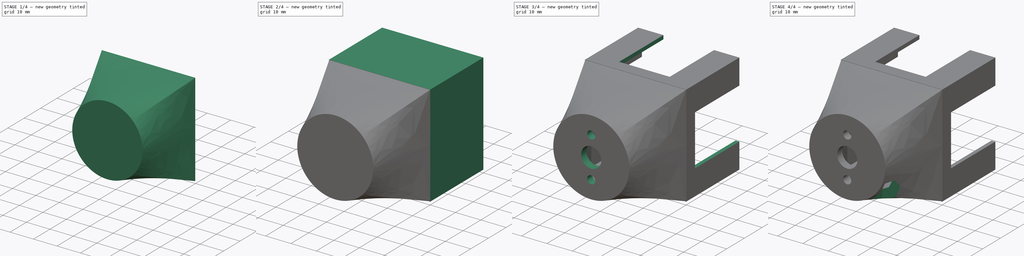
[diagram: build sequence overview — one tinted view per stage of 4, left to right]
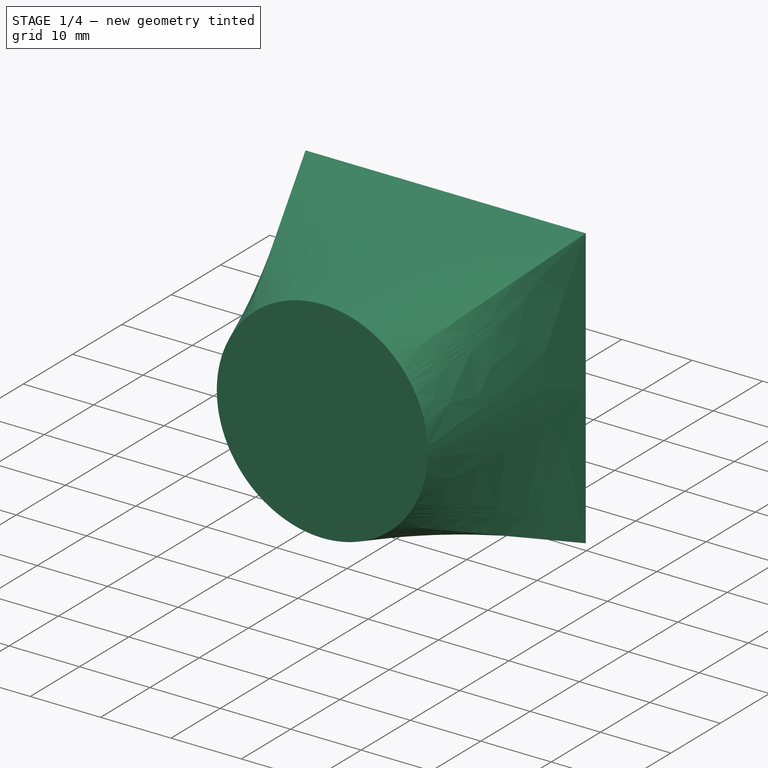
[diagram: stage 1 of 4 — iso view after this stage's code; geometry added in this stage tinted green]
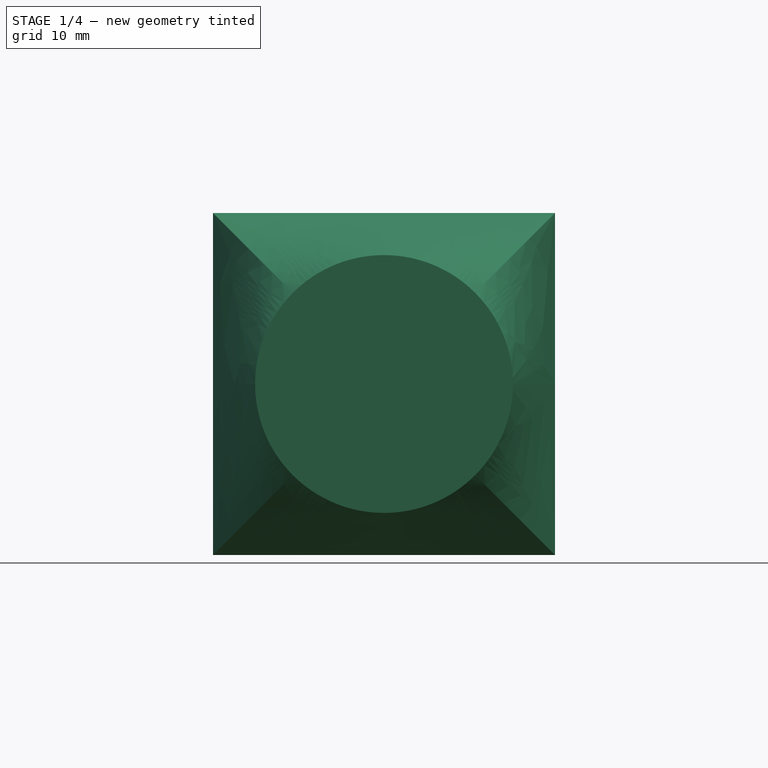
[diagram: stage 1 of 4 — front view after this stage's code; geometry added in this stage tinted green]
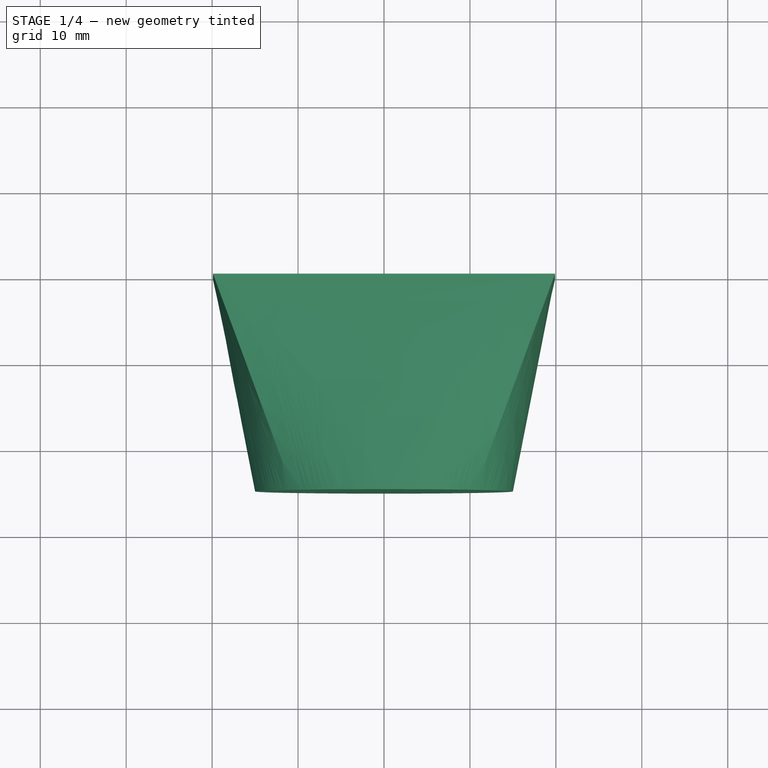
[diagram: stage 1 of 4 — top view after this stage's code; geometry added in this stage tinted green]
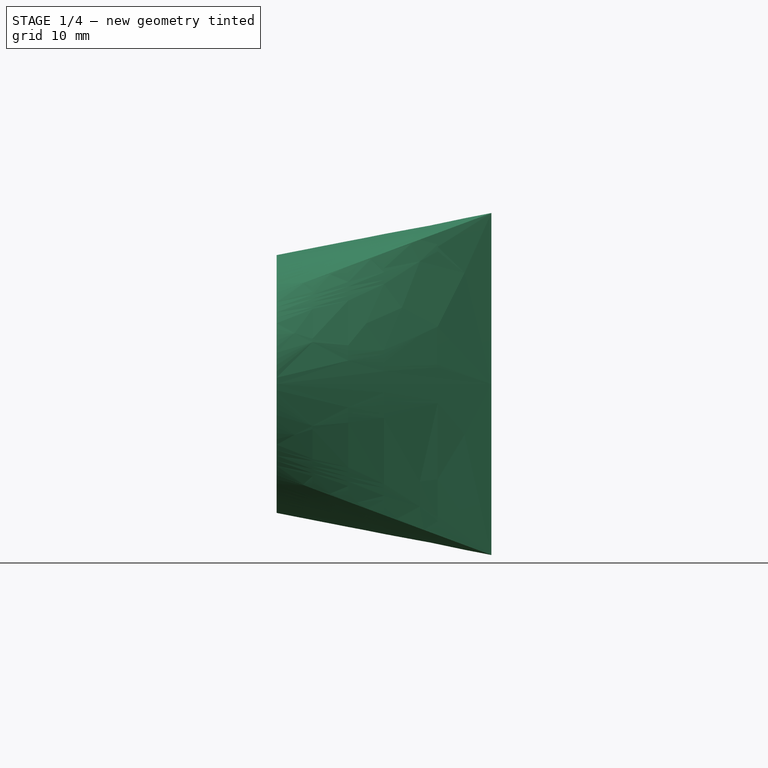
[diagram: stage 1 of 4 — right view after this stage's code; geometry added in this stage tinted green]
FCSTD DOCUMENT  (FreeCAD 1.0R39319 (Git))
Label: Cockpit
License: All rights reserved
LicenseURL: https://en.wikipedia.org/wiki/All_rights_reserved
objects: Sketcher::SketchObject×10, PartDesign::Pocket×5, PartDesign::AdditiveLoft×1, PartDesign::SubtractiveLoft×1, PartDesign::Pad×1, PartDesign::Chamfer×1, PartDesign::Body×1
note: 48 computed .brp shape members not serialized (recipe doc carries the construction recipe); baked Part::Feature solids carry a one-line shape summary decoded from their .brp

FEATURE [Sketcher::SketchObject] Sketch
  ArcFitTolerance = 1e-06
  AttachmentSupport = -> [XZ_Plane]
  FullyConstrained = true
  MakeInternals = false
  MapMode = 5
  Placement = pos=(0,0,0) rot=(1,0,0;1.5708rad)
  sketch-geometry (5):
    g0: LineSegment StartX=-19.9 StartY=-19.9 StartZ=0 EndX=19.9 EndY=-19.9 EndZ=0
    g1: LineSegment StartX=19.9 StartY=-19.9 StartZ=0 EndX=19.9 EndY=19.9 EndZ=0
    g2: LineSegment StartX=19.9 StartY=19.9 StartZ=0 EndX=-19.9 EndY=19.9 EndZ=0
    g3: LineSegment StartX=-19.9 StartY=19.9 StartZ=0 EndX=-19.9 EndY=-19.9 EndZ=0
    g4: GeomPoint [constr] X=0 Y=0 Z=0
  constraints (12):
    c: Coincident(g0,g1)
    c: Coincident(g1,g2)
    c: Coincident(g2,g3)
    c: Coincident(g3,g0)
    c: Horizontal(g0)
    c: Horizontal(g2)
    c: Vertical(g1)
    c: Vertical(g3)
    c: Symmetric(g2,g0,g4)
    c: Distance(g1,g3) = 39.8
    c: Distance(g0,g2) = 39.8
    c: Coincident(g4,g-1)
FEATURE [Sketcher::SketchObject] Sketch001
  ArcFitTolerance = 1e-06
  AttachmentOffset = pos=(0,0,25) rot=(0,0,1;0rad)
  AttachmentSupport = -> [XZ_Plane]
  FullyConstrained = true
  MakeInternals = false
  MapMode = 5
  Placement = pos=(0,-25,5.6e-15) rot=(1,0,0;1.5708rad)
  sketch-geometry (1):
    g0: Circle CenterX=0 CenterY=0 CenterZ=0 NormalX=0 NormalY=0 NormalZ=1 AngleXU=0 Radius=15
  constraints (2):
    c: Diameter(g0) = 30
    c: Coincident(g0,g-1)
FEATURE [PartDesign::AdditiveLoft] AdditiveLoft
  Closed = false
  Placement = pos=(0,0,0) rot=(1,0,0;1.5708rad)
  Profile = -> Sketch001
  Refine = true
  Ruled = false
  Sections = -> [Sketch]
  Suppressed = false
FEATURE [Sketcher::SketchObject] Sketch002
  ArcFitTolerance = 1e-06
  AttachmentSupport = -> [AdditiveLoft]
  FullyConstrained = true
  MakeInternals = false
  MapMode = 5
  Placement = pos=(0,0,0) rot=(-1,0,0;1.5708rad)
  sketch-geometry (5):
    g0: LineSegment StartX=-17.5 StartY=-17.5 StartZ=0 EndX=17.5 EndY=-17.5 EndZ=0
    g1: LineSegment StartX=17.5 StartY=-17.5 StartZ=0 EndX=17.5 EndY=17.5 EndZ=0
    g2: LineSegment StartX=17.5 StartY=17.5 StartZ=0 EndX=-17.5 EndY=17.5 EndZ=0
    g3: LineSegment StartX=-17.5 StartY=17.5 StartZ=0 EndX=-17.5 EndY=-17.5 EndZ=0
    g4: GeomPoint [constr] X=0 Y=0 Z=0
  constraints (12):
    c: Coincident(g0,g1)
    c: Coincident(g1,g2)
    c: Coincident(g2,g3)
    c: Coincident(g3,g0)
    c: Horizontal(g0)
    c: Horizontal(g2)
    c: Vertical(g1)
    c: Vertical(g3)
    c: Symmetric(g2,g0,g4)
    c: Distance(g1,g3) = 35
    c: Distance(g0,g2) = 35
    c: Coincident(g4,g-1)
FEATURE [Sketcher::SketchObject] Sketch003
  ArcFitTolerance = 1e-06
  AttachmentOffset = pos=(0,0,-3) rot=(0,0,1;0rad)
  AttachmentSupport = -> [AdditiveLoft]
  FullyConstrained = true
  MakeInternals = false
  MapMode = 5
  Placement = pos=(0,-22,6.1e-15) rot=(1,0,0;1.5708rad)
  sketch-geometry (1):
    g0: Circle CenterX=0 CenterY=0 CenterZ=0 NormalX=0 NormalY=0 NormalZ=1 AngleXU=0 Radius=12.5
  constraints (2):
    c: Diameter(g0) = 25
    c: Coincident(g0,g-1)
FEATURE [PartDesign::SubtractiveLoft] SubtractiveLoft
  BaseFeature = -> AdditiveLoft
  Closed = false
  Placement = pos=(0,0,0) rot=(1,0,0;1.5708rad)
  Profile = -> Sketch002
  Refine = true
  Ruled = false
  Sections = -> [Sketch003]
  Suppressed = false
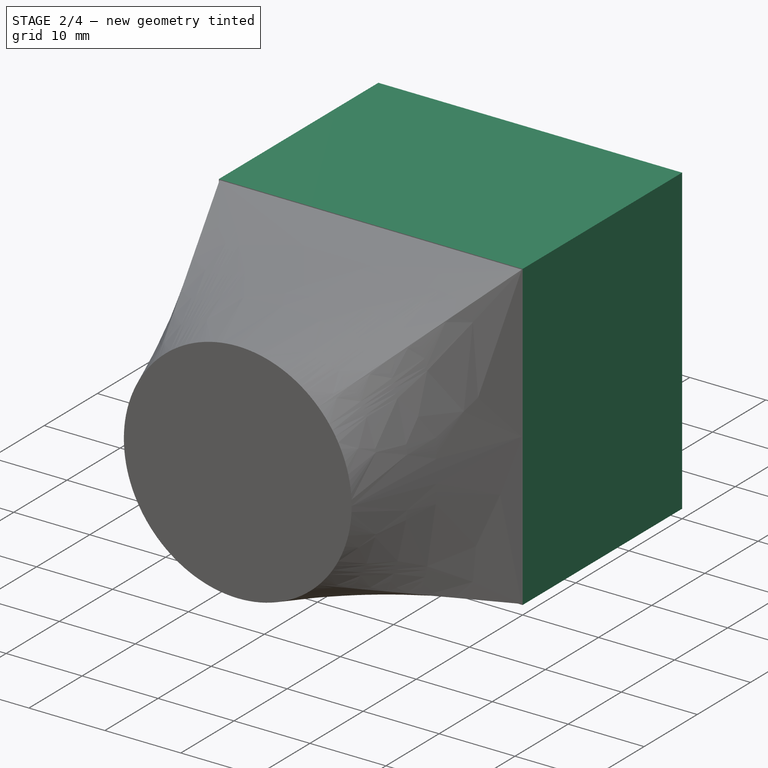
[diagram: stage 2 of 4 — iso view after this stage's code; geometry added in this stage tinted green]
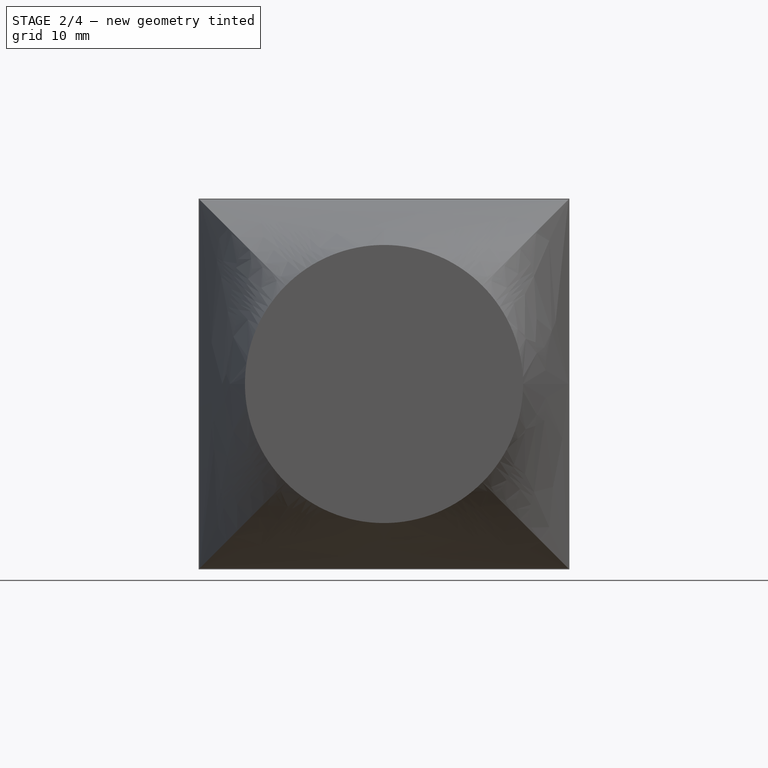
[diagram: stage 2 of 4 — front view after this stage's code; geometry added in this stage tinted green]
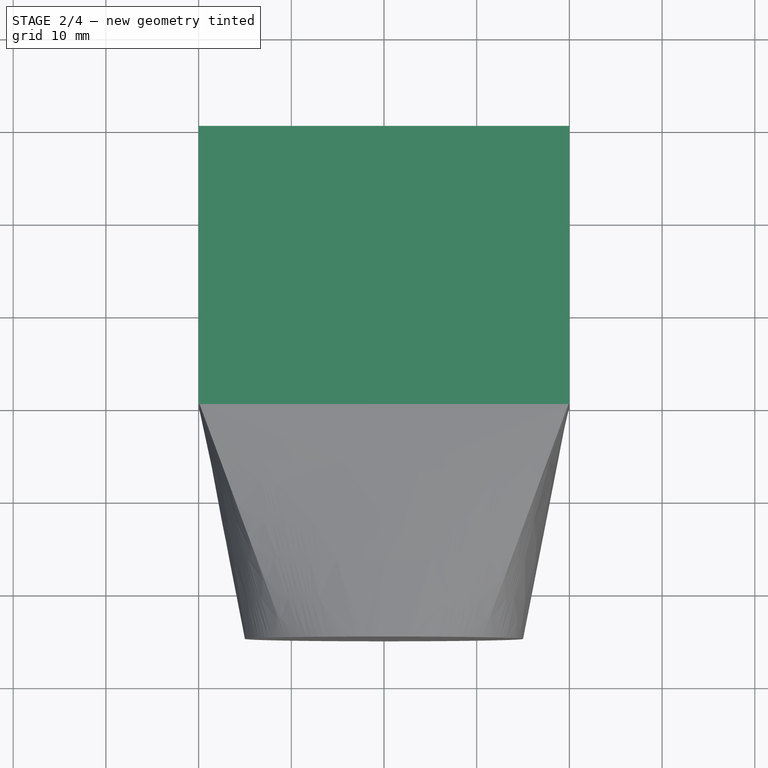
[diagram: stage 2 of 4 — top view after this stage's code; geometry added in this stage tinted green]
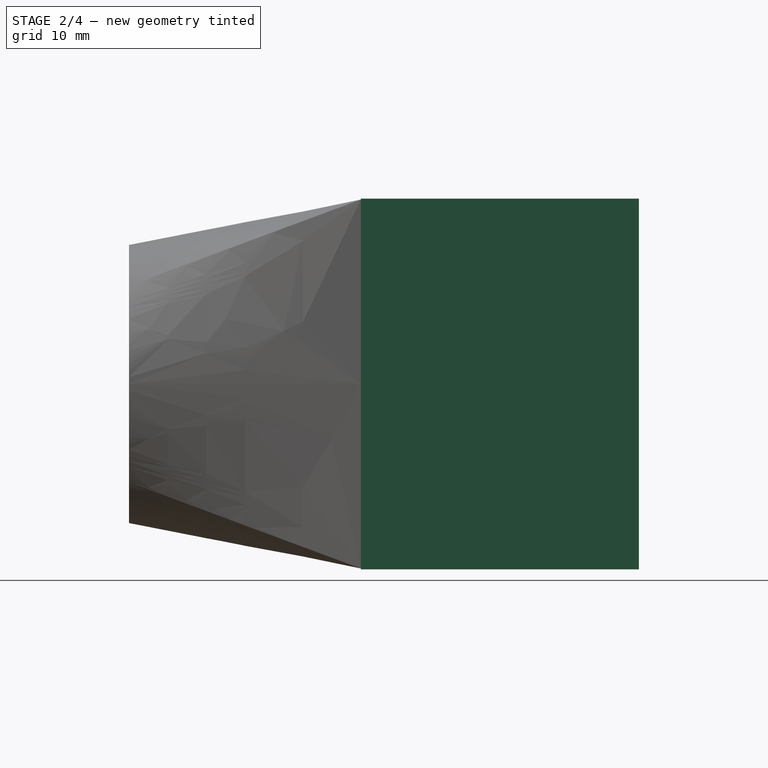
[diagram: stage 2 of 4 — right view after this stage's code; geometry added in this stage tinted green]
FEATURE [Sketcher::SketchObject] Sketch004
  ArcFitTolerance = 1e-06
  AttachmentOffset = pos=(0,0,-20) rot=(0,0,1;0rad)
  AttachmentSupport = -> [XY_Plane]
  FullyConstrained = true
  MakeInternals = false
  MapMode = 5
  Placement = pos=(0,0,-20) rot=(0,0,1;0rad)
  sketch-geometry (5):
    g0: LineSegment StartX=-20 StartY=0 StartZ=0 EndX=20 EndY=0 EndZ=0
    g1: LineSegment StartX=20 StartY=0 StartZ=0 EndX=20 EndY=30 EndZ=0
    g2: LineSegment StartX=20 StartY=30 StartZ=0 EndX=-20 EndY=30 EndZ=0
    g3: LineSegment StartX=-20 StartY=30 StartZ=0 EndX=-20 EndY=0 EndZ=0
    g4: GeomPoint X=0 Y=0 Z=0
  constraints (12):
    c: Coincident(g0,g1)
    c: Coincident(g1,g2)
    c: Coincident(g2,g3)
    c: Coincident(g3,g0)
    c: Horizontal(g0)
    c: Horizontal(g2)
    c: Vertical(g1)
    c: Vertical(g3)
    c: Distance(g1,g3) = 40
    c: Distance(g0,g2) = 30
    c: Symmetric(g0,g0,g4)
    c: Coincident(g4,g-1)
FEATURE [PartDesign::Pad] Pad
  BaseFeature = -> SubtractiveLoft
  Direction = (0,0,1)
  Length = 40
  Length2 = 10
  Placement = pos=(0,0,0) rot=(1,0,0;1.5708rad)
  Profile = -> Sketch004
  ReferenceAxis = -> Sketch004 [N_Axis]
  Refine = true
  Suppressed = false
  Type = 0
FEATURE [Sketcher::SketchObject] Sketch005
  ArcFitTolerance = 1e-06
  AttachmentSupport = -> [Pad]
  FullyConstrained = true
  MakeInternals = false
  MapMode = 5
  Placement = pos=(0,30,-6.6e-15) rot=(-1,0,0;1.5708rad)
  sketch-geometry (5):
    g0: LineSegment StartX=-18.5 StartY=-18.5 StartZ=0 EndX=18.5 EndY=-18.5 EndZ=0
    g1: LineSegment StartX=18.5 StartY=-18.5 StartZ=0 EndX=18.5 EndY=18.5 EndZ=0
    g2: LineSegment StartX=18.5 StartY=18.5 StartZ=0 EndX=-18.5 EndY=18.5 EndZ=0
    g3: LineSegment StartX=-18.5 StartY=18.5 StartZ=0 EndX=-18.5 EndY=-18.5 EndZ=0
    g4: GeomPoint [constr] X=0 Y=0 Z=0
  constraints (12):
    c: Coincident(g0,g1)
    c: Coincident(g1,g2)
    c: Coincident(g2,g3)
    c: Coincident(g3,g0)
    c: Horizontal(g0)
    c: Horizontal(g2)
    c: Vertical(g1)
    c: Vertical(g3)
    c: Symmetric(g2,g0,g4)
    c: Distance(g1,g3) = 37
    c: Distance(g0,g2) = 37
    c: Coincident(g4,g-1)
FEATURE [PartDesign::Pocket] Pocket  label="Sqaure"
  BaseFeature = -> Pad
  Direction = (0,-1,-2e-16)
  Length = 0
  Length2 = 5
  Placement = pos=(0,0,0) rot=(1,0,0;1.5708rad)
  Profile = -> Sketch005
  ReferenceAxis = -> Sketch005 [N_Axis]
  Refine = true
  Suppressed = false
  Type = 3
  UpToFace = -> XZ_Plane
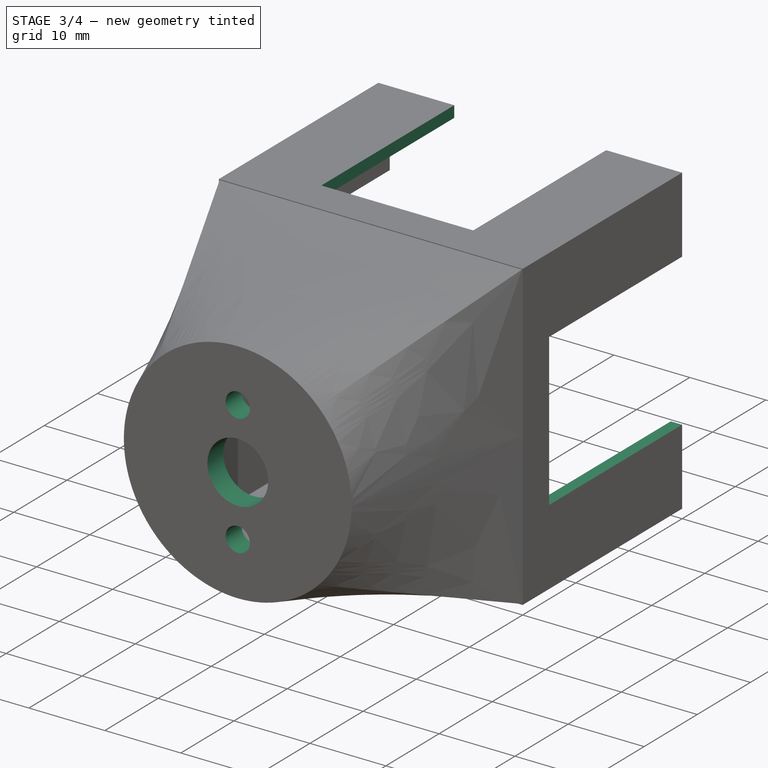
[diagram: stage 3 of 4 — iso view after this stage's code; geometry added in this stage tinted green]
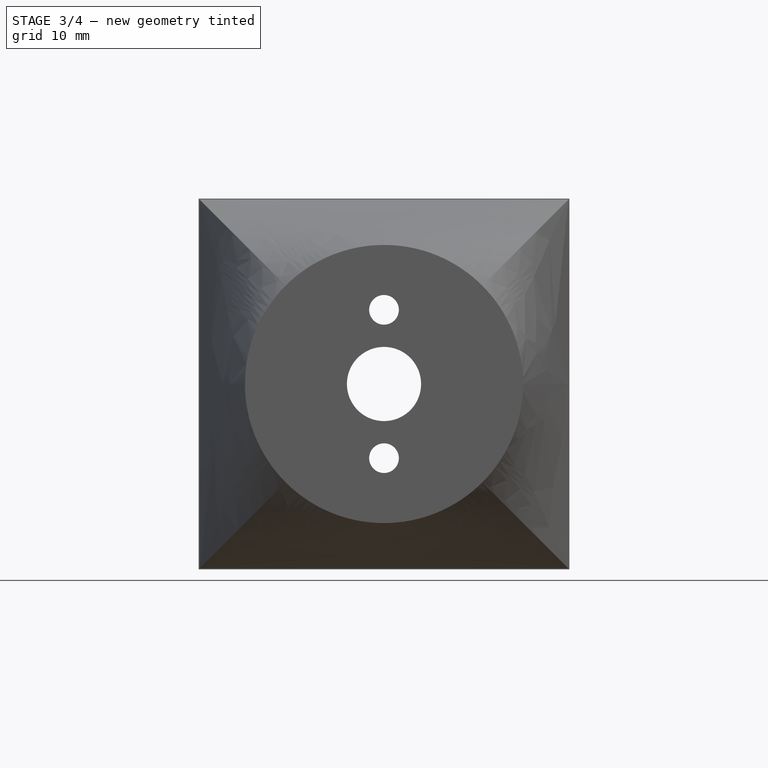
[diagram: stage 3 of 4 — front view after this stage's code; geometry added in this stage tinted green]
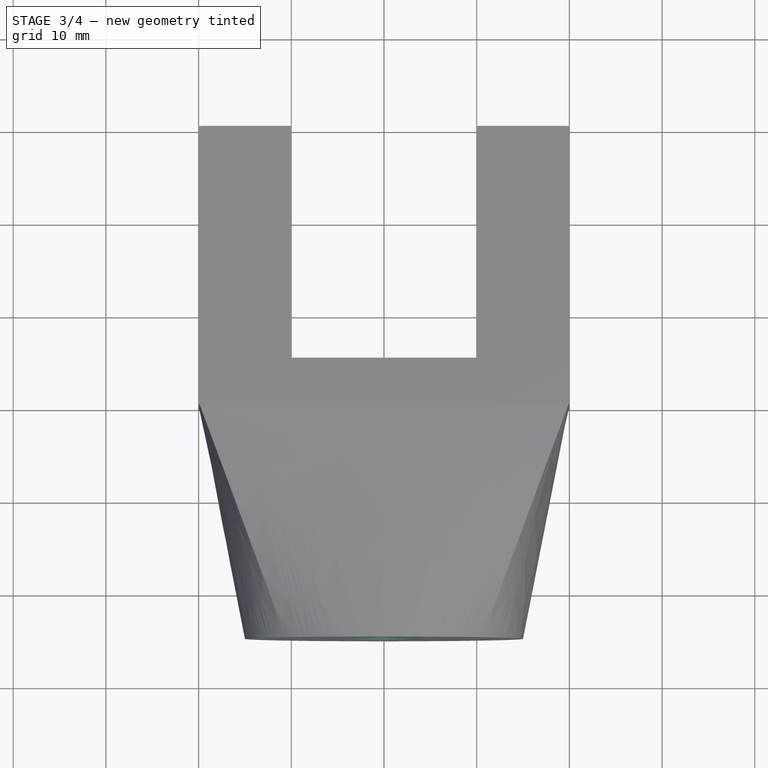
[diagram: stage 3 of 4 — top view after this stage's code; geometry added in this stage tinted green]
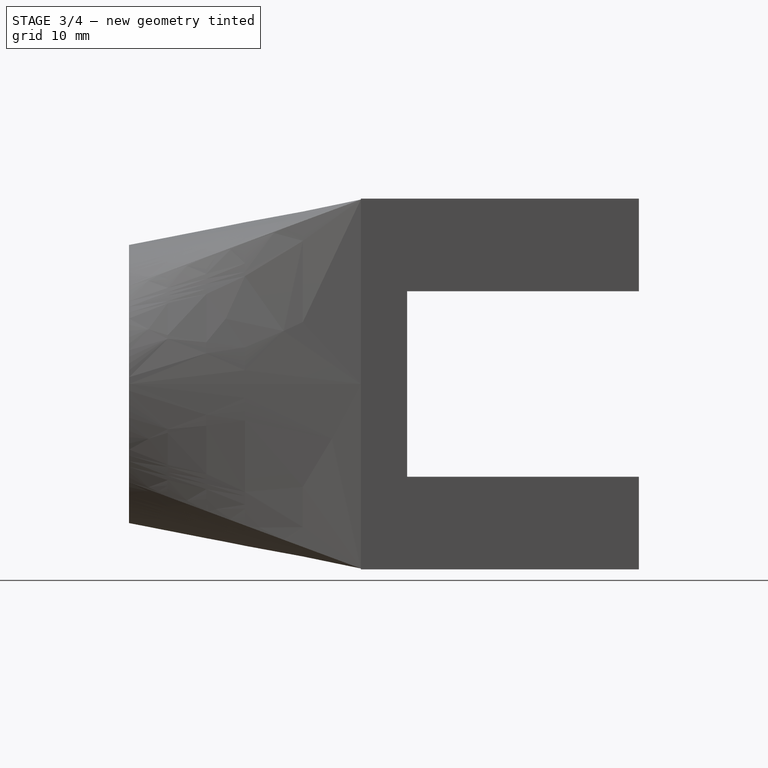
[diagram: stage 3 of 4 — right view after this stage's code; geometry added in this stage tinted green]
FEATURE [Sketcher::SketchObject] Sketch006
  ArcFitTolerance = 1e-06
  AttachmentSupport = -> [Pocket]
  ExternalGeometry = -> [Pocket]
  FullyConstrained = true
  MakeInternals = false
  MapMode = 5
  Placement = pos=(0,0,20) rot=(0,0,1;3.14159rad)
  sketch-geometry (4):
    g0: LineSegment StartX=-10 StartY=-5 StartZ=0 EndX=-10 EndY=-30 EndZ=0
    g1: LineSegment StartX=-10 StartY=-30 StartZ=0 EndX=10 EndY=-30 EndZ=0
    g2: LineSegment StartX=10 StartY=-30 StartZ=0 EndX=10 EndY=-5 EndZ=0
    g3: LineSegment StartX=10 StartY=-5 StartZ=0 EndX=-10 EndY=-5 EndZ=0
  constraints (12):
    c: Coincident(g0,g1)
    c: Coincident(g1,g2)
    c: Coincident(g2,g3)
    c: Coincident(g3,g0)
    c: Vertical(g0)
    c: Vertical(g2)
    c: Horizontal(g1)
    c: Horizontal(g3)
    c: Distance(g-1,g3) = 5
    c: Distance(g-3,g2) = 10
    c: Distance(g-5,g0) = 10
    c: PointOnObject(g1,g-4)
FEATURE [PartDesign::Pocket] Pocket001  label="Top Square"
  BaseFeature = -> Pocket
  Direction = (0,0,-1)
  Length = 0
  Length2 = 5
  Placement = pos=(0,0,0) rot=(1,0,0;1.5708rad)
  Profile = -> Sketch006
  ReferenceAxis = -> Sketch006 [N_Axis]
  Refine = true
  Suppressed = false
  Type = 3
  UpToFace = -> Pocket [Face9]
FEATURE [Sketcher::SketchObject] Sketch007
  ArcFitTolerance = 1e-06
  AttachmentSupport = -> [Pocket001]
  ExternalGeometry = -> [Pocket001]
  FullyConstrained = true
  MakeInternals = false
  MapMode = 5
  Placement = pos=(-20,0,0) rot=(0.707107,0,-0.707107;3.14159rad)
  sketch-geometry (4):
    g0: LineSegment StartX=-10 StartY=-5 StartZ=0 EndX=-10 EndY=-30 EndZ=0
    g1: LineSegment StartX=-10 StartY=-30 StartZ=0 EndX=10 EndY=-30 EndZ=0
    g2: LineSegment StartX=10 StartY=-30 StartZ=0 EndX=10 EndY=-5 EndZ=0
    g3: LineSegment StartX=10 StartY=-5 StartZ=0 EndX=-10 EndY=-5 EndZ=0
  constraints (12):
    c: Coincident(g0,g1)
    c: Coincident(g1,g2)
    c: Coincident(g2,g3)
    c: Coincident(g3,g0)
    c: Vertical(g0)
    c: Vertical(g2)
    c: Horizontal(g1)
    c: Horizontal(g3)
    c: Distance(g-3,g2) = 10
    c: Distance(g-1,g3) = 5
    c: Distance(g-5,g0) = 10
    c: PointOnObject(g1,g-4)
FEATURE [PartDesign::Pocket] Pocket002  label="Side Square"
  BaseFeature = -> Pocket001
  Direction = (1,0,2e-16)
  Length = 0
  Length2 = 5
  Placement = pos=(0,0,0) rot=(1,0,0;1.5708rad)
  Profile = -> Sketch007
  ReferenceAxis = -> Sketch007 [N_Axis]
  Refine = true
  Suppressed = false
  Type = 3
  UpToFace = -> Pocket001 [Face11]
FEATURE [Sketcher::SketchObject] Sketch008
  ArcFitTolerance = 1e-06
  AttachmentSupport = -> [Pocket002]
  ExternalGeometry = -> [Pocket002]
  FullyConstrained = true
  MakeInternals = false
  MapMode = 5
  Placement = pos=(0,-25,6.7e-15) rot=(1,0,0;1.5708rad)
  sketch-geometry (4):
    g0: Circle CenterX=-8e-16 CenterY=-8 CenterZ=0 NormalX=0 NormalY=0 NormalZ=1 AngleXU=0 Radius=1.6
    g1: Circle CenterX=0 CenterY=8 CenterZ=0 NormalX=0 NormalY=0 NormalZ=1 AngleXU=0 Radius=1.6
    g2: LineSegment [constr] StartX=0 StartY=8 StartZ=0 EndX=-8e-16 EndY=-8 EndZ=0
    g3: Circle CenterX=0 CenterY=0 CenterZ=0 NormalX=0 NormalY=0 NormalZ=1 AngleXU=0 Radius=4
  constraints (9):
    c: Diameter(g0) = 3.2
    c: Diameter(g1) = 3.2
    c: Coincident(g2,g1)
    c: Coincident(g2,g0)
    c: Diameter(g3) = 8
    c: Coincident(g3,g-1)
    c: Symmetric(g2,g2,g3)
    c: DistanceY(g2,g2) = 16
    c: PointOnObject(g1,g-2)
FEATURE [PartDesign::Pocket] Pocket003  label="Motor Holes"
  BaseFeature = -> Pocket002
  Direction = (0,1,-2e-16)
  Length = 0
  Length2 = 5
  Placement = pos=(0,0,0) rot=(1,0,0;1.5708rad)
  Profile = -> Sketch008
  ReferenceAxis = -> Sketch008 [N_Axis]
  Refine = true
  Suppressed = false
  Type = 3
  UpToFace = -> Pocket002 [Face38]
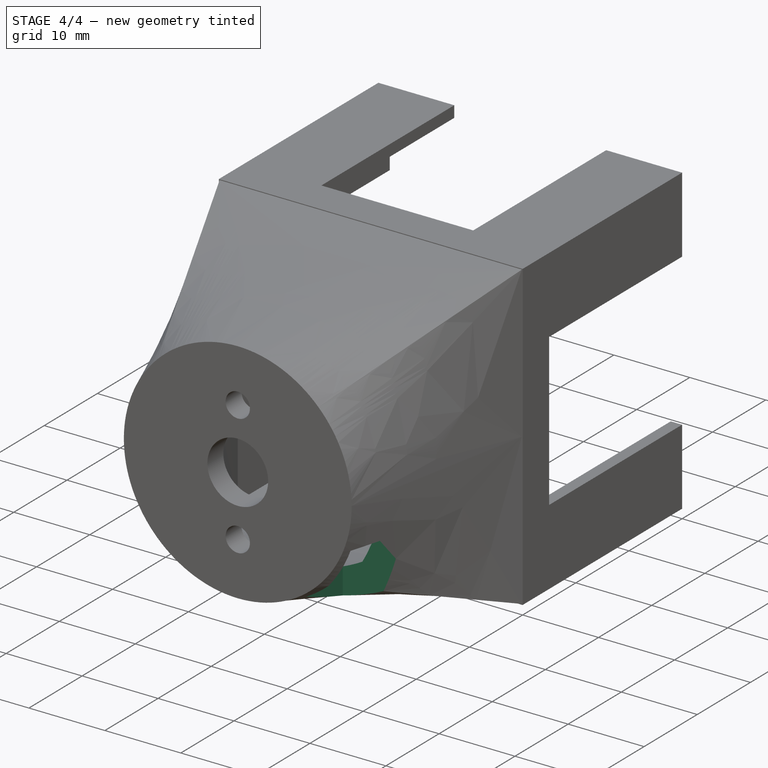
[diagram: stage 4 of 4 — iso view after this stage's code; geometry added in this stage tinted green]
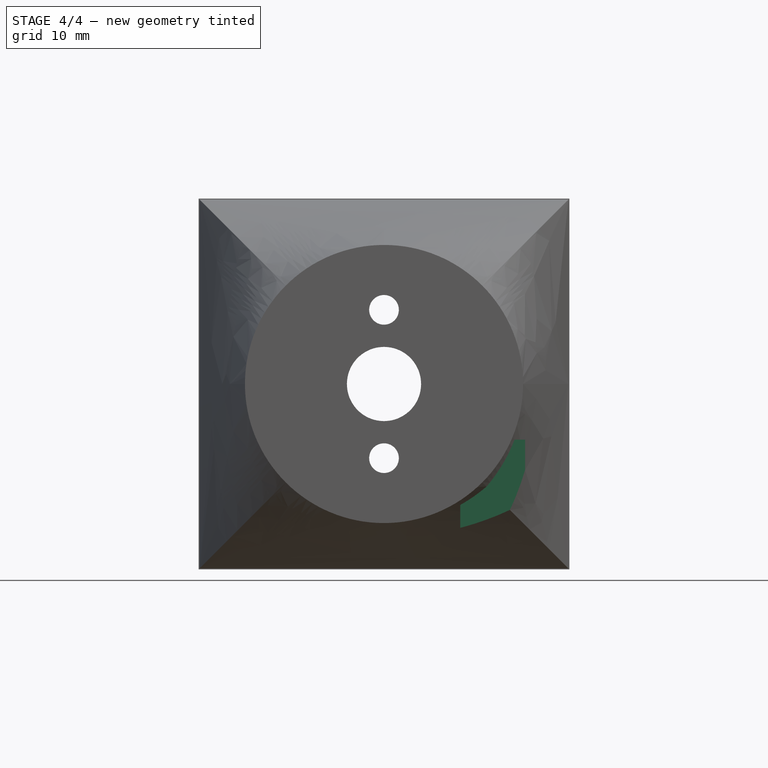
[diagram: stage 4 of 4 — front view after this stage's code; geometry added in this stage tinted green]
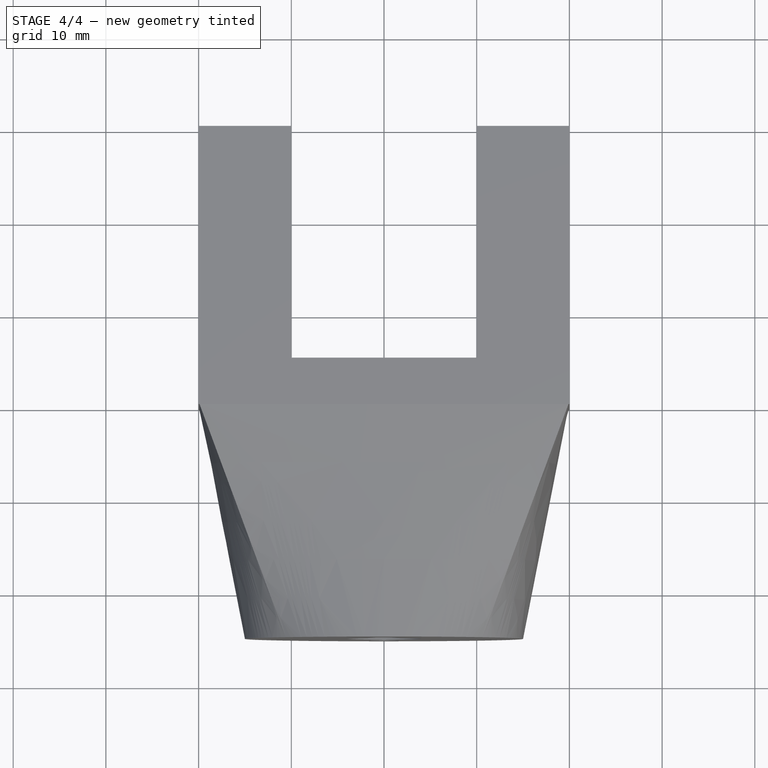
[diagram: stage 4 of 4 — top view after this stage's code; geometry added in this stage tinted green]
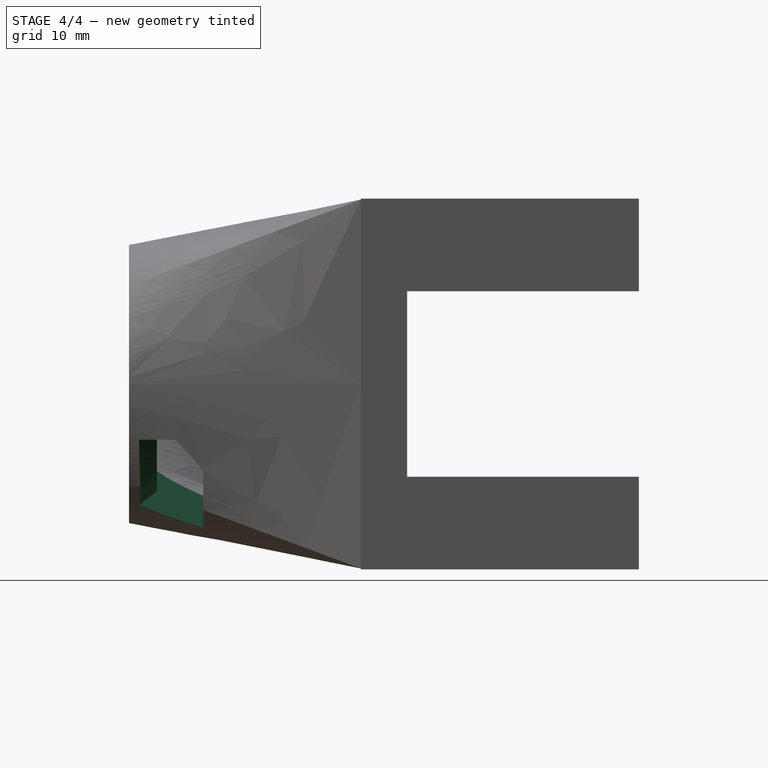
[diagram: stage 4 of 4 — right view after this stage's code; geometry added in this stage tinted green]
FEATURE [Sketcher::SketchObject] Sketch009
  ArcFitTolerance = 1e-06
  AttachmentSupport = -> [Pocket003]
  ExternalGeometry = -> [Pocket003]
  FullyConstrained = true
  MakeInternals = false
  MapMode = 5
  Placement = pos=(0,0,-20) rot=(1,0,0;3.14159rad)
  sketch-geometry (5):
    g0: LineSegment StartX=8.22181 StartY=17 StartZ=0 EndX=15.2218 EndY=17 EndZ=0
    g1: LineSegment StartX=15.2218 StartY=17 StartZ=0 EndX=15.2218 EndY=22 EndZ=0
    g2: LineSegment StartX=15.2218 StartY=22 StartZ=0 EndX=8.22181 EndY=22 EndZ=0
    g3: LineSegment StartX=8.22181 StartY=22 StartZ=0 EndX=8.22181 EndY=17 EndZ=0
    g4: GeomPoint [constr] X=11.7218 Y=22 Z=0
  constraints (13):
    c: Coincident(g0,g1)
    c: Coincident(g1,g2)
    c: Coincident(g2,g3)
    c: Coincident(g3,g0)
    c: Horizontal(g0)
    c: Horizontal(g2)
    c: Vertical(g1)
    c: Vertical(g3)
    c: DistanceX(g2,g2) = 7
    c: Distance(g1,g1) = 5
    c: Distance(g-4,g2) = 3
    c: Symmetric(g2,g2,g4)
    c: PointOnObject(g4,g-3)
FEATURE [PartDesign::Pocket] Pocket004
  BaseFeature = -> Pocket003
  Direction = (0,0,1)
  Length = 14
  Length2 = 5
  Placement = pos=(0,0,0) rot=(1,0,0;1.5708rad)
  Profile = -> Sketch009
  ReferenceAxis = -> Sketch009 [N_Axis]
  Refine = true
  Suppressed = false
  Type = 0
FEATURE [PartDesign::Chamfer] Chamfer
  Angle = 45
  Base = -> Pocket004 [Edge13,Edge25]
  BaseFeature = -> Pocket004
  ChamferType = 0
  FlipDirection = false
  Placement = pos=(0,0,0) rot=(1,0,0;1.5708rad)
  Refine = true
  Size = 2
  Size2 = 1
  SupportTransform = false
  Suppressed = false
  UseAllEdges = false
FEATURE [PartDesign::Body] Body
  AllowCompound = false
  Group = -> [Sketch,Sketch001,AdditiveLoft,Sketch002,Sketch003,SubtractiveLoft,Sketch004,Pad,Sketch005,Pocket,Sketch006,Pocket001,Sketch007,Pocket002,Sketch008,Pocket003,Sketch009,Pocket004,Chamfer]
  Origin = -> Origin
  Tip = -> Chamfer
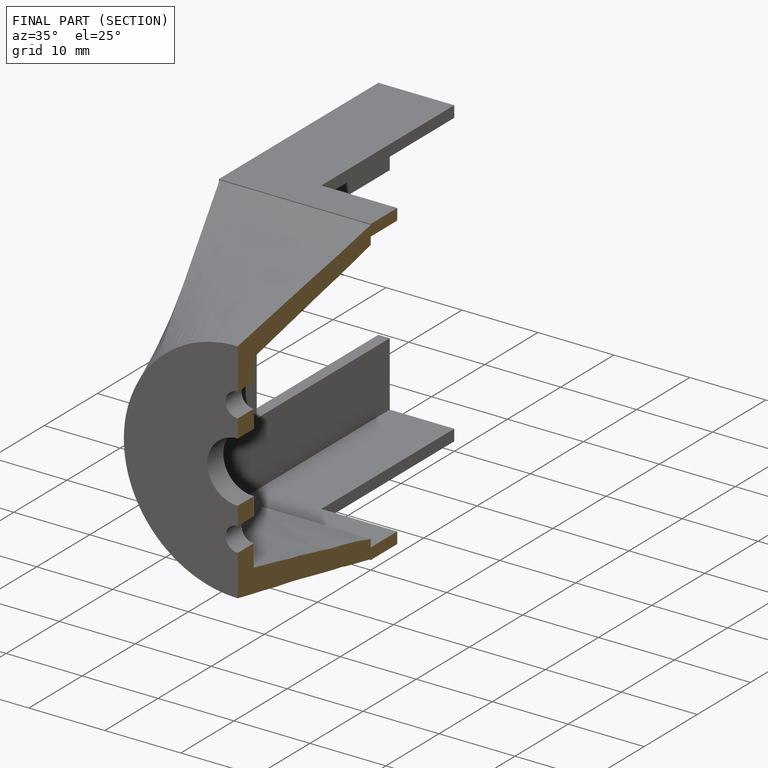
[diagram: finished part — half-section view (interior)]
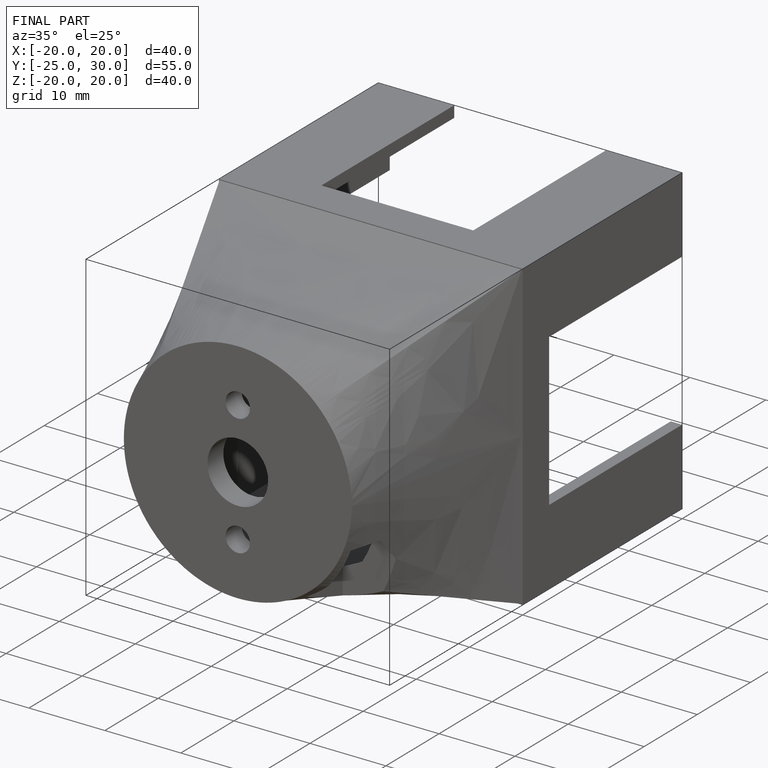
[diagram: finished part — iso view with bounding-box wireframe]
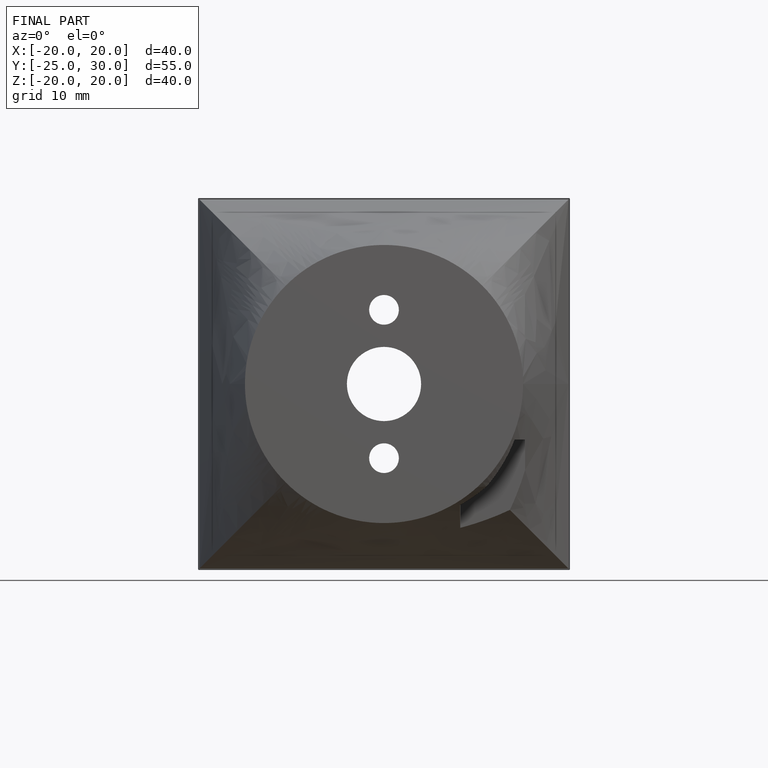
[diagram: finished part — front view with bounding-box wireframe]
